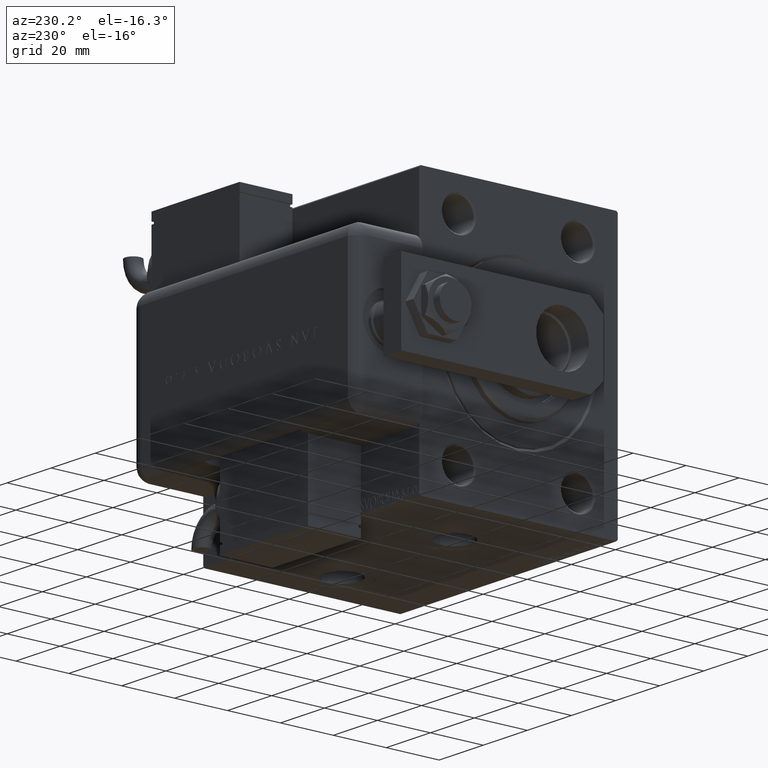
[diagram: clean part render]
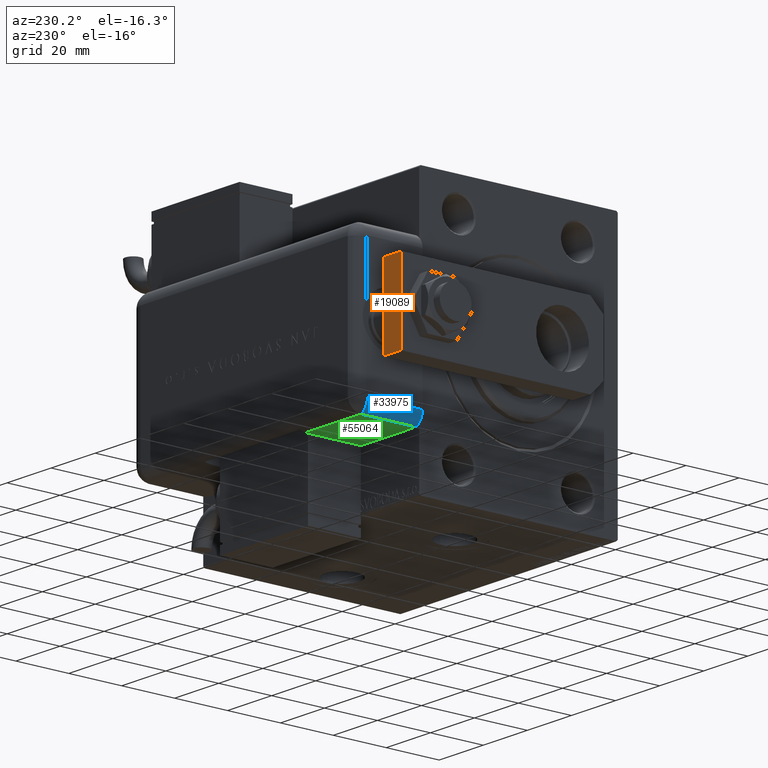
[diagram: same view with three faces highlighted in distinct colors, each labeled with its STEP entity id]
A machine part, auxiliary view with three faces highlighted in distinct colors.
Their STEP definitions:

[orange] entity #19089 — the highlighted planar face has unit normal (-0, -1, 0).
#621 = ORIENTED_EDGE ( 'NONE', *, *, #48464, .T. ) ;
#1778 = ORIENTED_EDGE ( 'NONE', *, *, #36789, .T. ) ;
#3573 = CARTESIAN_POINT ( 'NONE',  ( -14.99999999999999822, 76.50000000000000000, 8.000000000000000000 ) ) ;
#4754 = ORIENTED_EDGE ( 'NONE', *, *, #11694, .F. ) ;
#6205 = CARTESIAN_POINT ( 'NONE',  ( 15.00000000000000355, 76.50000000000000000, 8.000000000000000000 ) ) ;
#10793 = CARTESIAN_POINT ( 'NONE',  ( 15.00000000000000355, 76.50000000000000000, 8.000000000000000000 ) ) ;
#11622 = CARTESIAN_POINT ( 'NONE',  ( 15.00000000000000355, 76.50000000000000000, 0.000000000000000000 ) ) ;
#11694 = EDGE_CURVE ( 'NONE', #20340, #59648, #36750, .T. ) ;
#15089 = CARTESIAN_POINT ( 'NONE',  ( 15.00000000000000355, 76.50000000000000000, 8.000000000000000000 ) ) ;
#15262 = CARTESIAN_POINT ( 'NONE',  ( 15.00000000000000355, 76.50000000000000000, 0.000000000000000000 ) ) ;
#16004 = EDGE_LOOP ( 'NONE', ( #621, #4754, #18354, #1778 ) ) ;
#16580 = VECTOR ( 'NONE', #32628, 1000.000000000000000 ) ;
#18354 = ORIENTED_EDGE ( 'NONE', *, *, #39660, .F. ) ;
#19089 = ADVANCED_FACE ( 'NONE', ( #47659 ), #52533, .F. ) ;
#19530 = LINE ( 'NONE', #15262, #16580 ) ;
#20096 = VECTOR ( 'NONE', #35128, 1000.000000000000000 ) ;
#20227 = DIRECTION ( 'NONE',  ( 0.000000000000000000, -1.000000000000000000, 0.000000000000000000 ) ) ;
#20340 = VERTEX_POINT ( 'NONE', #34857 ) ;
#24788 = DIRECTION ( 'NONE',  ( -0.000000000000000000, -0.000000000000000000, -1.000000000000000000 ) ) ;
#25991 = LINE ( 'NONE', #57670, #20096 ) ;
#31819 = VECTOR ( 'NONE', #35866, 1000.000000000000000 ) ;
#32628 = DIRECTION ( 'NONE',  ( -1.000000000000000000, 0.000000000000000000, 0.000000000000000000 ) ) ;
#34857 = CARTESIAN_POINT ( 'NONE',  ( -14.99999999999999822, 76.50000000000000000, 8.000000000000000000 ) ) ;
#35128 = DIRECTION ( 'NONE',  ( -1.000000000000000000, 0.000000000000000000, 0.000000000000000000 ) ) ;
#35866 = DIRECTION ( 'NONE',  ( -0.000000000000000000, -0.000000000000000000, -1.000000000000000000 ) ) ;
#36750 = LINE ( 'NONE', #3573, #31819 ) ;
#36789 = EDGE_CURVE ( 'NONE', #46945, #37882, #47347, .T. ) ;
#37882 = VERTEX_POINT ( 'NONE', #11622 ) ;
#39660 = EDGE_CURVE ( 'NONE', #46945, #20340, #25991, .T. ) ;
#46945 = VERTEX_POINT ( 'NONE', #15089 ) ;
#47347 = LINE ( 'NONE', #6205, #55038 ) ;
#47659 = FACE_OUTER_BOUND ( 'NONE', #16004, .T. ) ;
#48464 = EDGE_CURVE ( 'NONE', #37882, #59648, #19530, .T. ) ;
#49503 = AXIS2_PLACEMENT_3D ( 'NONE', #10793, #20227, #51421 ) ;
#51421 = DIRECTION ( 'NONE',  ( 0.000000000000000000, -0.000000000000000000, -1.000000000000000000 ) ) ;
#52533 = PLANE ( 'NONE',  #49503 ) ;
#55038 = VECTOR ( 'NONE', #24788, 1000.000000000000000 ) ;
#57670 = CARTESIAN_POINT ( 'NONE',  ( 15.00000000000000355, 76.50000000000000000, 8.000000000000000000 ) ) ;
#59648 = VERTEX_POINT ( 'NONE', #59764 ) ;
#59764 = CARTESIAN_POINT ( 'NONE',  ( -14.99999999999999822, 76.50000000000000000, 0.000000000000000000 ) ) ;

[blue] entity #33975 — the highlighted cylindrical surface (edge-blend (fillet) strip) has radius 5 mm, axis along (-0, -1, 0).
#299 = CARTESIAN_POINT ( 'NONE',  ( -24.41742430504415751, 20.79999999999998295, 97.00000000000000000 ) ) ;
#867 = EDGE_CURVE ( 'NONE', #35249, #27913, #52190, .T. ) ;
#3999 = CIRCLE ( 'NONE', #40976, 5.000000000000004441 ) ;
#5198 = ORIENTED_EDGE ( 'NONE', *, *, #867, .T. ) ;
#5877 = DIRECTION ( 'NONE',  ( 0.000000000000000000, -1.000000000000000000, 0.000000000000000000 ) ) ;
#6049 = CARTESIAN_POINT ( 'NONE',  ( -28.99999999999999645, 20.79999999999998295, 99.00000000000000000 ) ) ;
#6775 = ORIENTED_EDGE ( 'NONE', *, *, #57764, .F. ) ;
#11001 = VECTOR ( 'NONE', #5877, 1000.000000000000000 ) ;
#11849 = VERTEX_POINT ( 'NONE', #20255 ) ;
#15200 = FACE_OUTER_BOUND ( 'NONE', #18894, .T. ) ;
#15531 = DIRECTION ( 'NONE',  ( 0.000000000000000000, 0.000000000000000000, 1.000000000000000000 ) ) ;
#16054 = DIRECTION ( 'NONE',  ( -0.000000000000000000, -1.000000000000000000, 0.000000000000000000 ) ) ;
#18720 = DIRECTION ( 'NONE',  ( 0.000000000000000000, 1.000000000000000000, -0.000000000000000000 ) ) ;
#18894 = EDGE_LOOP ( 'NONE', ( #41936, #23917, #6775, #5198 ) ) ;
#19901 = EDGE_CURVE ( 'NONE', #11849, #20934, #43475, .T. ) ;
#20255 = CARTESIAN_POINT ( 'NONE',  ( -24.41742430504416106, 20.79999999999998295, 102.0000000000000142 ) ) ;
#20391 = CARTESIAN_POINT ( 'NONE',  ( -24.41742430504415751, -1.040834085586084257E-14, 97.00000000000000000 ) ) ;
#20934 = VERTEX_POINT ( 'NONE', #25201 ) ;
#22624 = AXIS2_PLACEMENT_3D ( 'NONE', #47042, #18720, #42473 ) ;
#23917 = ORIENTED_EDGE ( 'NONE', *, *, #19901, .F. ) ;
#24042 = CYLINDRICAL_SURFACE ( 'NONE', #54134, 5.000000000000004441 ) ;
#25201 = CARTESIAN_POINT ( 'NONE',  ( -24.41742430504415751, -1.040834085586084257E-14, 102.0000000000000142 ) ) ;
#25595 = EDGE_CURVE ( 'NONE', #20934, #27913, #3999, .T. ) ;
#27913 = VERTEX_POINT ( 'NONE', #29633 ) ;
#29633 = CARTESIAN_POINT ( 'NONE',  ( -28.99999999999999645, -9.421223957302265857E-15, 99.00000000000000000 ) ) ;
#32870 = DIRECTION ( 'NONE',  ( 0.000000000000000000, -1.000000000000000000, 0.000000000000000000 ) ) ;
#33291 = CARTESIAN_POINT ( 'NONE',  ( -28.99999999999999645, 20.79999999999998295, 99.00000000000000000 ) ) ;
#33975 = ADVANCED_FACE ( 'NONE', ( #15200 ), #24042, .T. ) ;
#34405 = DIRECTION ( 'NONE',  ( -0.000000000000000000, -1.000000000000000000, -0.000000000000000000 ) ) ;
#35249 = VERTEX_POINT ( 'NONE', #6049 ) ;
#40976 = AXIS2_PLACEMENT_3D ( 'NONE', #20391, #34405, #15531 ) ;
#41936 = ORIENTED_EDGE ( 'NONE', *, *, #25595, .F. ) ;
#42473 = DIRECTION ( 'NONE',  ( 0.000000000000000000, 0.000000000000000000, 1.000000000000000000 ) ) ;
#43475 = LINE ( 'NONE', #52328, #52443 ) ;
#46975 = CIRCLE ( 'NONE', #22624, 5.000000000000004441 ) ;
#47042 = CARTESIAN_POINT ( 'NONE',  ( -24.41742430504416106, 20.79999999999998295, 97.00000000000000000 ) ) ;
#50873 = DIRECTION ( 'NONE',  ( 0.000000000000000000, 0.000000000000000000, -1.000000000000000000 ) ) ;
#52190 = LINE ( 'NONE', #33291, #11001 ) ;
#52328 = CARTESIAN_POINT ( 'NONE',  ( -24.41742430504415751, -1.040834085586084257E-14, 102.0000000000000142 ) ) ;
#52443 = VECTOR ( 'NONE', #16054, 1000.000000000000000 ) ;
#54134 = AXIS2_PLACEMENT_3D ( 'NONE', #299, #32870, #50873 ) ;
#57764 = EDGE_CURVE ( 'NONE', #35249, #11849, #46975, .T. ) ;

[green] entity #55064 — the highlighted planar face has unit normal (0, 0, 1).
#68 = EDGE_CURVE ( 'NONE', #26732, #56464, #16826, .T. ) ;
#1228 = DIRECTION ( 'NONE',  ( 0.000000000000000000, -1.000000000000000000, 0.000000000000000000 ) ) ;
#3881 = CARTESIAN_POINT ( 'NONE',  ( -28.99999999999999645, 20.79999999999998295, 74.00000000000001421 ) ) ;
#5402 = LINE ( 'NONE', #48553, #33730 ) ;
#5807 = DIRECTION ( 'NONE',  ( 1.000000000000000000, 0.000000000000000000, -0.000000000000000000 ) ) ;
#7364 = CARTESIAN_POINT ( 'NONE',  ( -28.99999999999999645, 22.99999999999998934, 74.00000000000001421 ) ) ;
#8270 = DIRECTION ( 'NONE',  ( -0.000000000000000000, 1.000000000000000000, -0.000000000000000000 ) ) ;
#12853 = AXIS2_PLACEMENT_3D ( 'NONE', #14957, #5807, #28363 ) ;
#14062 = EDGE_CURVE ( 'NONE', #38765, #56464, #5402, .T. ) ;
#14957 = CARTESIAN_POINT ( 'NONE',  ( -28.99999999999999645, 25.79999999999998295, 99.00000000000000000 ) ) ;
#15524 = LINE ( 'NONE', #56367, #26059 ) ;
#16794 = EDGE_CURVE ( 'NONE', #38765, #42801, #15524, .T. ) ;
#16826 = LINE ( 'NONE', #7364, #57665 ) ;
#19918 = CARTESIAN_POINT ( 'NONE',  ( -28.99999999999999645, -9.421223957302265857E-15, 99.00000000000000000 ) ) ;
#23544 = EDGE_CURVE ( 'NONE', #42801, #26732, #45692, .T. ) ;
#26059 = VECTOR ( 'NONE', #1228, 1000.000000000000000 ) ;
#26732 = VERTEX_POINT ( 'NONE', #46876 ) ;
#27705 = DIRECTION ( 'NONE',  ( -0.000000000000000000, -0.000000000000000000, -1.000000000000000000 ) ) ;
#27755 = ORIENTED_EDGE ( 'NONE', *, *, #16794, .F. ) ;
#28363 = DIRECTION ( 'NONE',  ( -0.000000000000000000, 0.000000000000000000, -1.000000000000000000 ) ) ;
#28653 = FACE_OUTER_BOUND ( 'NONE', #31120, .T. ) ;
#31120 = EDGE_LOOP ( 'NONE', ( #50551, #42502, #43627, #27755 ) ) ;
#33222 = PLANE ( 'NONE',  #12853 ) ;
#33730 = VECTOR ( 'NONE', #51422, 1000.000000000000000 ) ;
#34068 = VECTOR ( 'NONE', #27705, 1000.000000000000000 ) ;
#38765 = VERTEX_POINT ( 'NONE', #56399 ) ;
#42502 = ORIENTED_EDGE ( 'NONE', *, *, #68, .F. ) ;
#42801 = VERTEX_POINT ( 'NONE', #19918 ) ;
#43627 = ORIENTED_EDGE ( 'NONE', *, *, #23544, .F. ) ;
#45692 = LINE ( 'NONE', #59692, #34068 ) ;
#46876 = CARTESIAN_POINT ( 'NONE',  ( -28.99999999999999645, -9.421223957302265857E-15, 74.00000000000001421 ) ) ;
#48553 = CARTESIAN_POINT ( 'NONE',  ( -28.99999999999999645, 20.79999999999998295, 99.00000000000000000 ) ) ;
#50551 = ORIENTED_EDGE ( 'NONE', *, *, #14062, .T. ) ;
#51422 = DIRECTION ( 'NONE',  ( 0.000000000000000000, 0.000000000000000000, -1.000000000000000000 ) ) ;
#55064 = ADVANCED_FACE ( 'NONE', ( #28653 ), #33222, .F. ) ;
#56367 = CARTESIAN_POINT ( 'NONE',  ( -28.99999999999999645, 25.79999999999998295, 99.00000000000000000 ) ) ;
#56399 = CARTESIAN_POINT ( 'NONE',  ( -28.99999999999999645, 20.79999999999998295, 99.00000000000000000 ) ) ;
#56464 = VERTEX_POINT ( 'NONE', #3881 ) ;
#57665 = VECTOR ( 'NONE', #8270, 1000.000000000000000 ) ;
#59692 = CARTESIAN_POINT ( 'NONE',  ( -28.99999999999999645, -9.421223957302265857E-15, 99.00000000000000000 ) ) ;